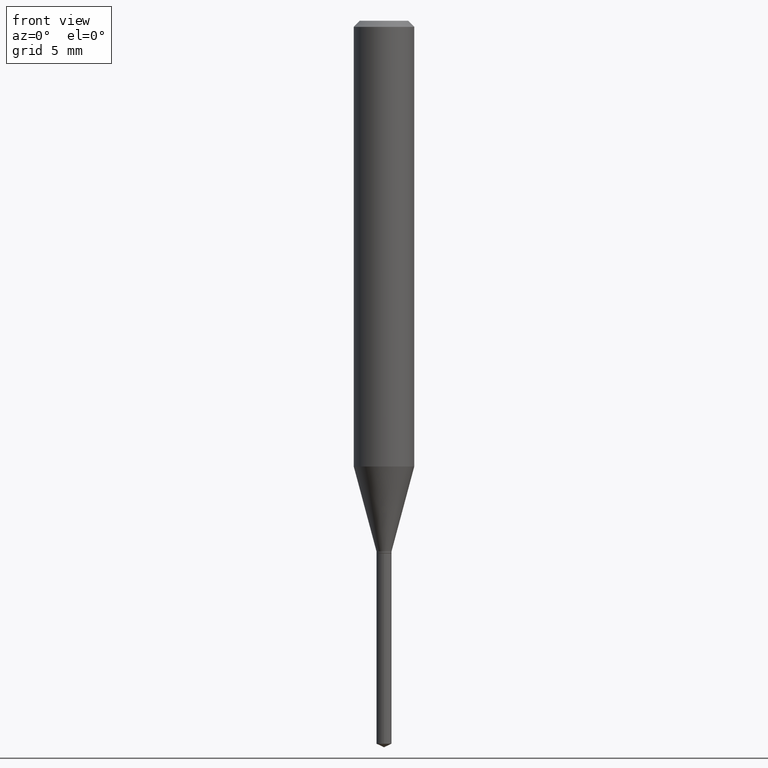
[diagram: clean part render]
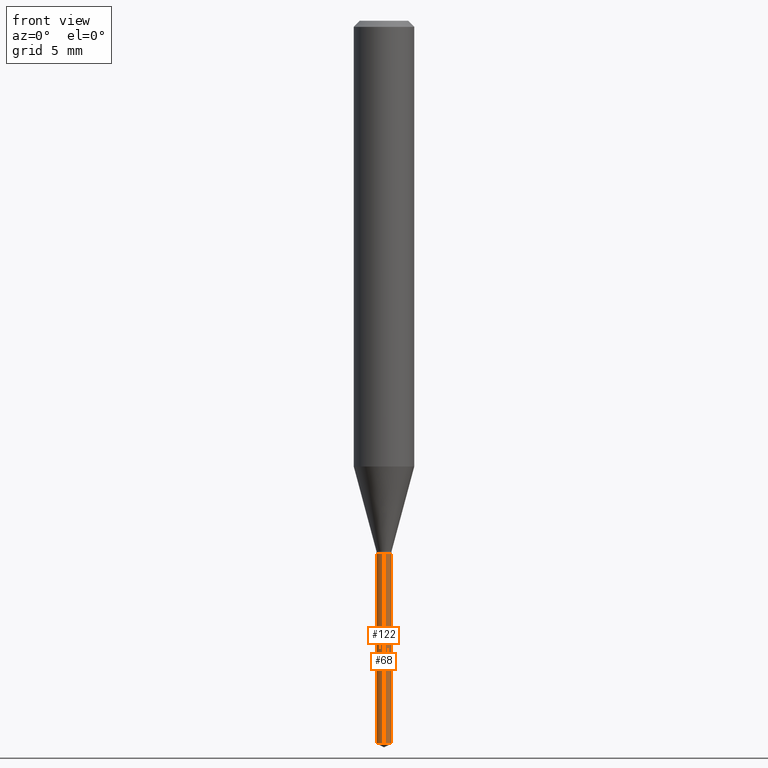
[diagram: same view with one multi-face feature highlighted, each face labeled with its STEP entity id]
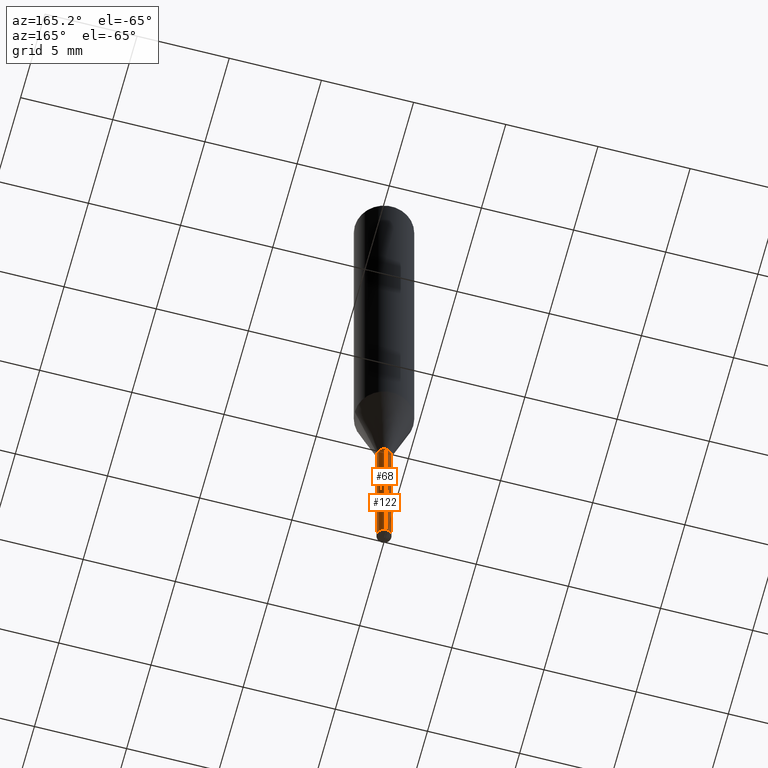
[diagram: same view with one multi-face feature highlighted, each face labeled with its STEP entity id]
A machine part, front view. The highlighted faces form ONE feature: a constant-radius fillet chain: 2 tangent blend faces with common blend radius 0.3962 mm. The faces share edges in the B-rep.
A second angle (auxiliary view) of the same feature is appended — it is thin or edge-on in the first view.
Their STEP definitions:
[1] entity #122 (Cylinder):
#3 = AXIS2_PLACEMENT_3D ( 'NONE', #207, #251, #433 ) ;
#10 = CARTESIAN_POINT ( 'NONE',  ( 2.690015686803650369E-29, -3.840629472727460101E-15, -1.100000000000000089 ) ) ;
#14 = FACE_OUTER_BOUND ( 'NONE', #290, .T. ) ;
#29 = CIRCLE ( 'NONE', #3, 0.01559999999999999928 ) ;
#40 = VERTEX_POINT ( 'NONE', #292 ) ;
#42 = DIRECTION ( 'NONE',  ( -2.445399690415121810E-29, 3.491580316559632610E-15, 1.000000000000000000 ) ) ;
#46 = CARTESIAN_POINT ( 'NONE',  ( 1.108446667786121334E-16, 0.01559999999999478991, -1.492725600532782027 ) ) ;
#51 = CARTESIAN_POINT ( 'NONE',  ( 1.108446667786025068E-16, 0.01559999999999615687, -1.100000000000000089 ) ) ;
#52 = EDGE_CURVE ( 'NONE', #440, #120, #261, .T. ) ;
#58 = VECTOR ( 'NONE', #272, 39.37007874015748143 ) ;
#75 = AXIS2_PLACEMENT_3D ( 'NONE', #384, #171, #347 ) ;
#118 = EDGE_CURVE ( 'NONE', #159, #40, #268, .T. ) ;
#120 = VERTEX_POINT ( 'NONE', #427 ) ;
#121 = CYLINDRICAL_SURFACE ( 'NONE', #275, 0.01559999999999999928 ) ;
#122 = ADVANCED_FACE ( 'NONE', ( #14 ), #121, .T. ) ;
#145 = EDGE_CURVE ( 'NONE', #159, #440, #199, .T. ) ;
#159 = VERTEX_POINT ( 'NONE', #46 ) ;
#163 = ORIENTED_EDGE ( 'NONE', *, *, #118, .F. ) ;
#171 = DIRECTION ( 'NONE',  ( -2.445399690415121530E-29, 3.491580316559632610E-15, 1.000000000000000000 ) ) ;
#181 = ORIENTED_EDGE ( 'NONE', *, *, #339, .F. ) ;
#199 = CIRCLE ( 'NONE', #75, 0.01559999999999999928 ) ;
#207 = CARTESIAN_POINT ( 'NONE',  ( 2.690015686803650369E-29, -3.840629472727460101E-15, -1.100000000000000089 ) ) ;
#247 = ORIENTED_EDGE ( 'NONE', *, *, #52, .T. ) ;
#251 = DIRECTION ( 'NONE',  ( -2.445399690415121530E-29, 3.491580316559632610E-15, 1.000000000000000000 ) ) ;
#261 = LINE ( 'NONE', #304, #285 ) ;
#268 = LINE ( 'NONE', #51, #58 ) ;
#272 = DIRECTION ( 'NONE',  ( -2.445399690415121810E-29, 3.491580316559632610E-15, 1.000000000000000000 ) ) ;
#275 = AXIS2_PLACEMENT_3D ( 'NONE', #10, #346, #392 ) ;
#285 = VECTOR ( 'NONE', #42, 39.37007874015748143 ) ;
#287 = CARTESIAN_POINT ( 'NONE',  ( -1.089342177718692452E-16, -0.01560000000000521213, -1.492725600532782027 ) ) ;
#290 = EDGE_LOOP ( 'NONE', ( #163, #432, #247, #181 ) ) ;
#292 = CARTESIAN_POINT ( 'NONE',  ( 1.108446667786121827E-16, 0.01559999999999615687, -1.100000000000000089 ) ) ;
#304 = CARTESIAN_POINT ( 'NONE',  ( -1.089342177718788348E-16, -0.01560000000000383996, -1.100000000000000089 ) ) ;
#339 = EDGE_CURVE ( 'NONE', #40, #120, #29, .T. ) ;
#346 = DIRECTION ( 'NONE',  ( -2.445399690415121530E-29, 3.491580316559632610E-15, 1.000000000000000000 ) ) ;
#347 = DIRECTION ( 'NONE',  ( -6.982962677686265922E-15, -1.000000000000000000, 0.000000000000000000 ) ) ;
#384 = CARTESIAN_POINT ( 'NONE',  ( 3.650386748764607710E-29, -5.211862449356783133E-15, -1.492725600532782027 ) ) ;
#392 = DIRECTION ( 'NONE',  ( -6.982962677686265922E-15, -1.000000000000000000, 0.000000000000000000 ) ) ;
#427 = CARTESIAN_POINT ( 'NONE',  ( -1.089342177718788348E-16, -0.01560000000000383996, -1.100000000000000089 ) ) ;
#432 = ORIENTED_EDGE ( 'NONE', *, *, #145, .T. ) ;
#433 = DIRECTION ( 'NONE',  ( -6.982962677686265922E-15, -1.000000000000000000, 0.000000000000000000 ) ) ;
#440 = VERTEX_POINT ( 'NONE', #287 ) ;
[2] entity #68 (Cylinder):
#39 = EDGE_CURVE ( 'NONE', #120, #40, #368, .T. ) ;
#40 = VERTEX_POINT ( 'NONE', #292 ) ;
#42 = DIRECTION ( 'NONE',  ( -2.445399690415121810E-29, 3.491580316559632610E-15, 1.000000000000000000 ) ) ;
#46 = CARTESIAN_POINT ( 'NONE',  ( 1.108446667786121334E-16, 0.01559999999999478991, -1.492725600532782027 ) ) ;
#51 = CARTESIAN_POINT ( 'NONE',  ( 1.108446667786025068E-16, 0.01559999999999615687, -1.100000000000000089 ) ) ;
#52 = EDGE_CURVE ( 'NONE', #440, #120, #261, .T. ) ;
#58 = VECTOR ( 'NONE', #272, 39.37007874015748143 ) ;
#68 = ADVANCED_FACE ( 'NONE', ( #117 ), #380, .T. ) ;
#81 = DIRECTION ( 'NONE',  ( -6.982962677686265922E-15, -1.000000000000000000, 0.000000000000000000 ) ) ;
#104 = EDGE_LOOP ( 'NONE', ( #295, #217, #324, #478 ) ) ;
#117 = FACE_OUTER_BOUND ( 'NONE', #104, .T. ) ;
#118 = EDGE_CURVE ( 'NONE', #159, #40, #268, .T. ) ;
#120 = VERTEX_POINT ( 'NONE', #427 ) ;
#159 = VERTEX_POINT ( 'NONE', #46 ) ;
#160 = DIRECTION ( 'NONE',  ( -2.445399690415121530E-29, 3.491580316559632610E-15, 1.000000000000000000 ) ) ;
#165 = CARTESIAN_POINT ( 'NONE',  ( 3.650386748764607710E-29, -5.211862449356783133E-15, -1.492725600532782027 ) ) ;
#168 = CIRCLE ( 'NONE', #393, 0.01559999999999999928 ) ;
#188 = DIRECTION ( 'NONE',  ( -6.982962677686265922E-15, -1.000000000000000000, 0.000000000000000000 ) ) ;
#213 = EDGE_CURVE ( 'NONE', #440, #159, #168, .T. ) ;
#217 = ORIENTED_EDGE ( 'NONE', *, *, #118, .T. ) ;
#257 = CARTESIAN_POINT ( 'NONE',  ( 2.690015686803650369E-29, -3.840629472727460101E-15, -1.100000000000000089 ) ) ;
#261 = LINE ( 'NONE', #304, #285 ) ;
#266 = DIRECTION ( 'NONE',  ( -2.445399690415121530E-29, 3.491580316559632610E-15, 1.000000000000000000 ) ) ;
#268 = LINE ( 'NONE', #51, #58 ) ;
#272 = DIRECTION ( 'NONE',  ( -2.445399690415121810E-29, 3.491580316559632610E-15, 1.000000000000000000 ) ) ;
#285 = VECTOR ( 'NONE', #42, 39.37007874015748143 ) ;
#287 = CARTESIAN_POINT ( 'NONE',  ( -1.089342177718692452E-16, -0.01560000000000521213, -1.492725600532782027 ) ) ;
#292 = CARTESIAN_POINT ( 'NONE',  ( 1.108446667786121827E-16, 0.01559999999999615687, -1.100000000000000089 ) ) ;
#295 = ORIENTED_EDGE ( 'NONE', *, *, #213, .T. ) ;
#304 = CARTESIAN_POINT ( 'NONE',  ( -1.089342177718788348E-16, -0.01560000000000383996, -1.100000000000000089 ) ) ;
#316 = AXIS2_PLACEMENT_3D ( 'NONE', #257, #266, #487 ) ;
#324 = ORIENTED_EDGE ( 'NONE', *, *, #39, .F. ) ;
#368 = CIRCLE ( 'NONE', #485, 0.01559999999999999928 ) ;
#380 = CYLINDRICAL_SURFACE ( 'NONE', #316, 0.01559999999999999928 ) ;
#382 = CARTESIAN_POINT ( 'NONE',  ( 2.690015686803650369E-29, -3.840629472727460101E-15, -1.100000000000000089 ) ) ;
#393 = AXIS2_PLACEMENT_3D ( 'NONE', #165, #420, #81 ) ;
#420 = DIRECTION ( 'NONE',  ( -2.445399690415121530E-29, 3.491580316559632610E-15, 1.000000000000000000 ) ) ;
#427 = CARTESIAN_POINT ( 'NONE',  ( -1.089342177718788348E-16, -0.01560000000000383996, -1.100000000000000089 ) ) ;
#440 = VERTEX_POINT ( 'NONE', #287 ) ;
#478 = ORIENTED_EDGE ( 'NONE', *, *, #52, .F. ) ;
#485 = AXIS2_PLACEMENT_3D ( 'NONE', #382, #160, #188 ) ;
#487 = DIRECTION ( 'NONE',  ( -6.982962677686265922E-15, -1.000000000000000000, 0.000000000000000000 ) ) ;